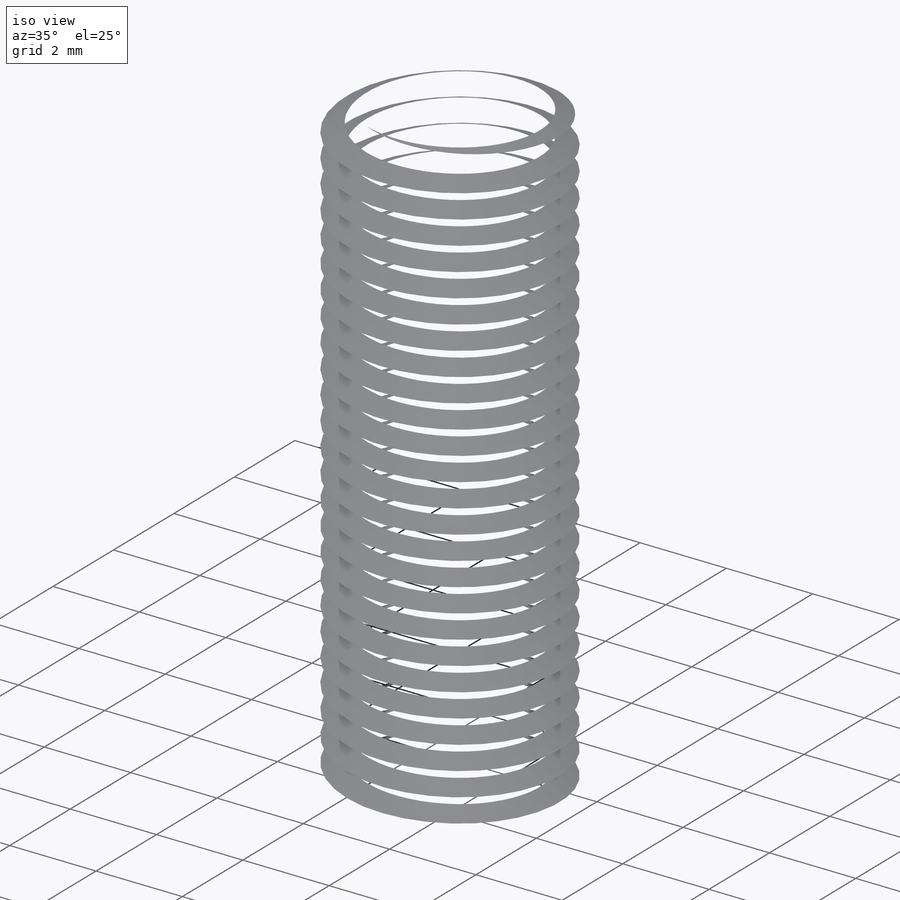
[diagram: iso view]
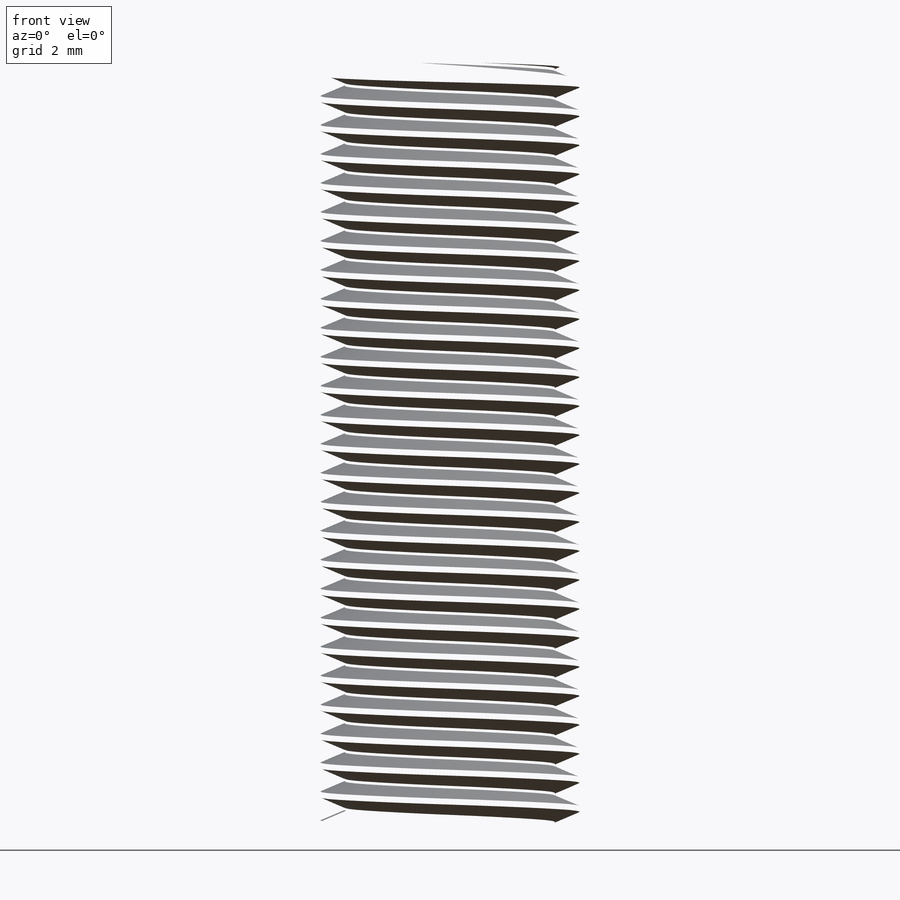
[diagram: front view]
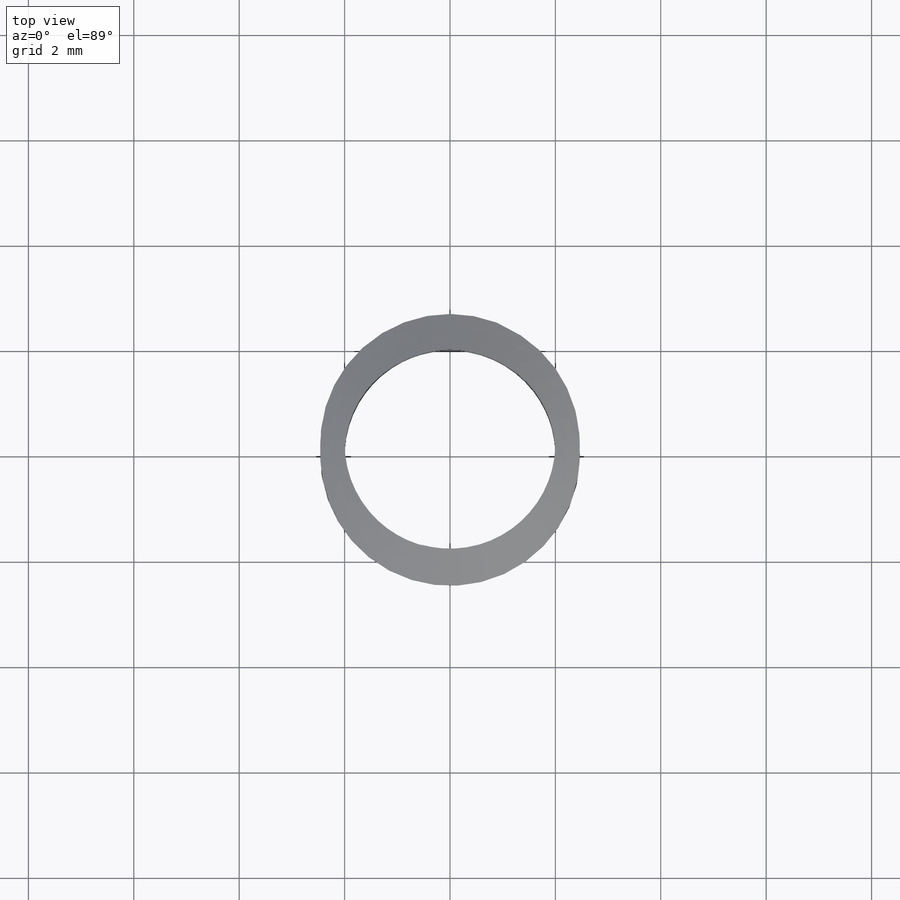
[diagram: top view]
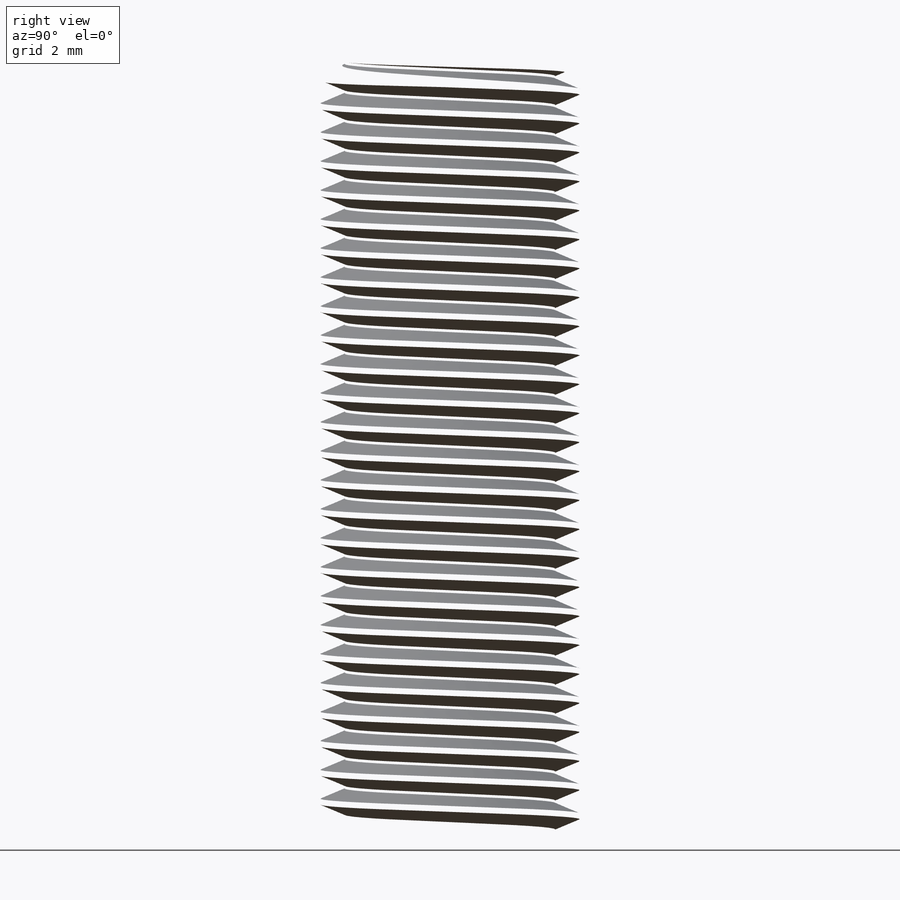
[diagram: right view]
SOLIDWORKS PART (.sldprt)
format: sldprt  version: not decoded by parser v0  size: 1,441,792 bytes
history: native  units: mm
features: sketch x7, plane x5, cut_extrude x2, pattern_circular x2, sweep x2, material x1, revolve x1, helix x1, chamfer x1 (+10 scaffold rows collapsed)
feature tree (32):
  scaffold x10  (default folders/planes/origin — collapsed)
  material  "Alliage 1060"
  plane  "Plan de face"
  plane  "Plan de dessus"
  plane  "Plan de droite"
  sketch  "Esquisse1"  dims[c1.D1=0.5mm c1.D2=2.0mm c1.D3=1.0mm c1.D4=6.0mm c1.D5=7.0mm c1.D6=23.5mm c1.D7=4.0mm c1.D8=2.5mm c1.3.2=1.6mm c1.D9=0.5mm c2.D8=3.0mm]
  revolve  "Révolution1"  Angle=360deg
  sketch  "Esquisse2"  dims[D1=0.3mm]
  cut_extrude  "Enlèv. mat.-Extru.1"  [1 undecoded]
  pattern_circular  "Répétition circulaire1"  Count=2 Angle=90deg
  plane  "Plan1"  Offset=0.5mm
  sketch  "Esquisse3"  dims[D2=0.06mm D1=0.5mm D3=0.5mm]
  sketch  "Esquisse4"
  helix  "Hélice/Spirale1"  Pitch=15mm
  chamfer  "Chanfrein2"  Distance=0.25mm Angle=45deg
  sweep  "Balayage1"
  sketch  "Esquisse5"  dims[D1=5.5mm]
  cut_extrude  "Enlèv. mat.-Extru.2"  [1 undecoded]
  sketch  "Esquisse10"  dims[D1=0.0mm]
  plane  "Plan4"  Offset=1.8mm
  sketch  "Esquisse11"  dims[D1=4.0mm]
  pattern_circular  "Hélice/Spirale2"  Angle=45deg  [1 undecoded]
  sweep  "Balayage2"
decode coverage: 11 of 16 modeling features carry decoded parameters
note: 3 parameter values undecoded
note: suppression state not decoded; provenance and decode notes live in map.json
